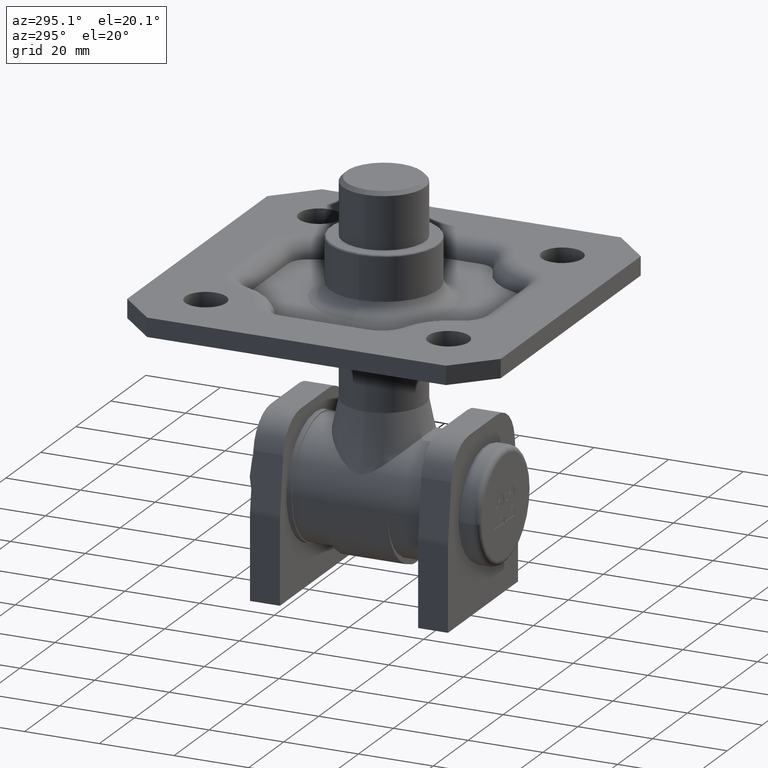
[diagram: clean part render]
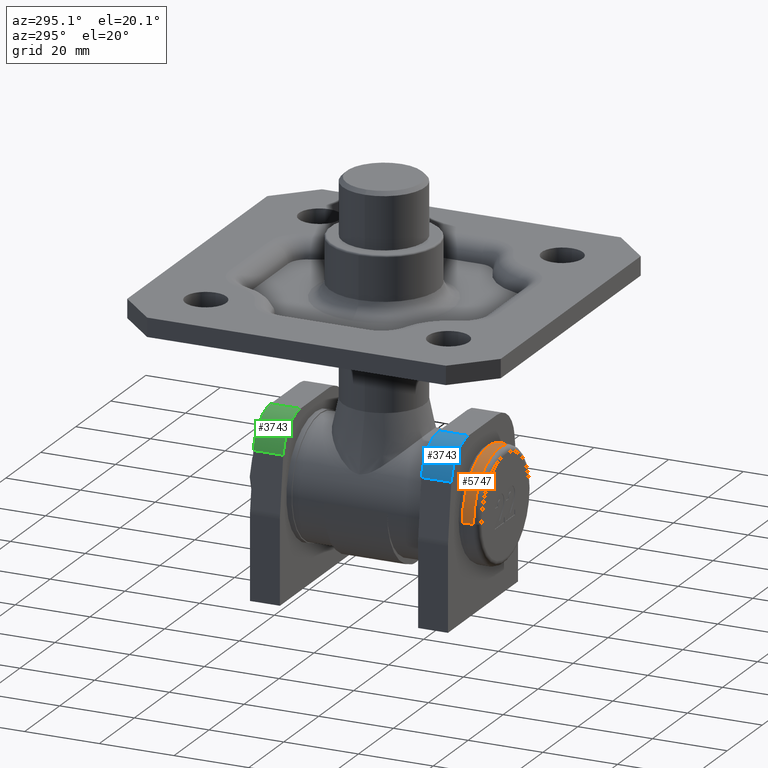
[diagram: same view with three faces highlighted in distinct colors, each labeled with its STEP entity id]
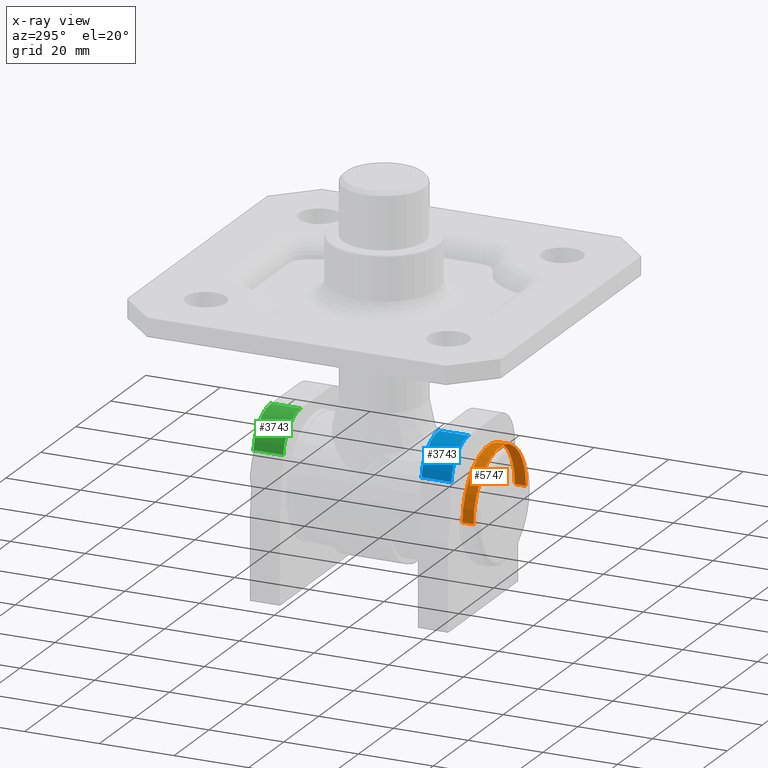
[diagram: x-ray of the same camera — body ghosted, the three highlighted faces saturated]
A machine part, auxiliary view with three faces highlighted in distinct colors.
The next image is the same camera in x-ray (body ghosted, the three faces saturated) — at least one of them is partly hidden behind the body in this view.
Their STEP definitions:

[orange] entity #5747 — the highlighted cylindrical surface (partial cylindrical patch) has radius 15 mm, axis along (-0, 1, 0).
#566 = DIRECTION ( 'NONE',  ( -1.000000000000000000, 0.0000000000000000000, 0.0000000000000000000 ) ) ;
#704 = EDGE_CURVE ( 'NONE', #7098, #12142, #3515, .T. ) ;
#750 = CARTESIAN_POINT ( 'NONE',  ( -15.00000000000000200, 54.74999999999999300, 0.0000000000000000000 ) ) ;
#1550 = CARTESIAN_POINT ( 'NONE',  ( 14.99999999999999800, 54.74999999999999300, 1.836970198721029600E-015 ) ) ;
#2880 = DIRECTION ( 'NONE',  ( -1.000000000000000000, -2.891205793294678700E-017, 0.0000000000000000000 ) ) ;
#2937 = DIRECTION ( 'NONE',  ( -3.310621835482434500E-017, 1.000000000000000000, -0.0000000000000000000 ) ) ;
#3246 = ORIENTED_EDGE ( 'NONE', *, *, #6796, .T. ) ;
#3515 = CIRCLE ( 'NONE', #5288, 15.00000000000000000 ) ;
#3756 = CARTESIAN_POINT ( 'NONE',  ( -15.00000000000000000, 1.500000000000000900, 0.0000000000000000000 ) ) ;
#3829 = CARTESIAN_POINT ( 'NONE',  ( -15.00000000000000000, 4.500000000000003600, 0.0000000000000000000 ) ) ;
#4379 = ORIENTED_EDGE ( 'NONE', *, *, #6327, .F. ) ;
#4858 = EDGE_LOOP ( 'NONE', ( #8595, #15849, #3246, #4379 ) ) ;
#5288 = AXIS2_PLACEMENT_3D ( 'NONE', #8221, #2937, #2880 ) ;
#5716 = CARTESIAN_POINT ( 'NONE',  ( 15.00000000000000000, 4.500000000000004400, 1.836970198721029600E-015 ) ) ;
#5747 = ADVANCED_FACE ( 'NONE', ( #14303 ), #17019, .T. ) ;
#5875 = CARTESIAN_POINT ( 'NONE',  ( -1.812565454926632200E-015, 54.74999999999999300, 0.0000000000000000000 ) ) ;
#6327 = EDGE_CURVE ( 'NONE', #7098, #6580, #6663, .T. ) ;
#6580 = VERTEX_POINT ( 'NONE', #3829 ) ;
#6663 = LINE ( 'NONE', #750, #10666 ) ;
#6796 = EDGE_CURVE ( 'NONE', #7174, #6580, #14092, .T. ) ;
#6822 = CARTESIAN_POINT ( 'NONE',  ( 15.00000000000000000, 1.500000000000001800, 1.836970198721029600E-015 ) ) ;
#6845 = DIRECTION ( 'NONE',  ( -3.310621835482434500E-017, 1.000000000000000000, -0.0000000000000000000 ) ) ;
#7098 = VERTEX_POINT ( 'NONE', #3756 ) ;
#7162 = EDGE_CURVE ( 'NONE', #12142, #7174, #15543, .T. ) ;
#7174 = VERTEX_POINT ( 'NONE', #5716 ) ;
#8221 = CARTESIAN_POINT ( 'NONE',  ( -4.965932753223618500E-017, 1.500000000000001300, 0.0000000000000000000 ) ) ;
#8483 = DIRECTION ( 'NONE',  ( 3.310621835482434500E-017, -1.000000000000000000, 0.0000000000000000000 ) ) ;
#8595 = ORIENTED_EDGE ( 'NONE', *, *, #704, .T. ) ;
#9854 = DIRECTION ( 'NONE',  ( 1.000000000000000000, 5.782411586589357400E-017, 0.0000000000000000000 ) ) ;
#9927 = DIRECTION ( 'NONE',  ( -3.310621835482434500E-017, 1.000000000000000000, -0.0000000000000000000 ) ) ;
#10666 = VECTOR ( 'NONE', #9927, 1000.000000000000000 ) ;
#12142 = VERTEX_POINT ( 'NONE', #6822 ) ;
#12208 = AXIS2_PLACEMENT_3D ( 'NONE', #13749, #8483, #9854 ) ;
#13011 = VECTOR ( 'NONE', #6845, 1000.000000000000000 ) ;
#13239 = AXIS2_PLACEMENT_3D ( 'NONE', #5875, #16640, #566 ) ;
#13749 = CARTESIAN_POINT ( 'NONE',  ( -1.489779825967093200E-016, 4.500000000000003600, 0.0000000000000000000 ) ) ;
#14092 = CIRCLE ( 'NONE', #12208, 15.00000000000000000 ) ;
#14303 = FACE_OUTER_BOUND ( 'NONE', #4858, .T. ) ;
#15543 = LINE ( 'NONE', #1550, #13011 ) ;
#15849 = ORIENTED_EDGE ( 'NONE', *, *, #7162, .T. ) ;
#16640 = DIRECTION ( 'NONE',  ( -3.310621835482434500E-017, 1.000000000000000000, -0.0000000000000000000 ) ) ;
#17019 = CYLINDRICAL_SURFACE ( 'NONE', #13239, 15.00000000000000000 ) ;

[blue] entity #3743 — the highlighted cylindrical surface (partial cylindrical patch) has radius 10 mm, axis along (0, -1, 0).
#173 = CYLINDRICAL_SURFACE ( 'NONE', #2840, 10.00000000000000000 ) ;
#1144 = EDGE_CURVE ( 'NONE', #14427, #8055, #6426, .T. ) ;
#1595 = DIRECTION ( 'NONE',  ( 0.0000000000000000000, 0.0000000000000000000, -1.000000000000000000 ) ) ;
#1971 = EDGE_LOOP ( 'NONE', ( #8455, #13296, #16441, #4627 ) ) ;
#2676 = EDGE_CURVE ( 'NONE', #8821, #14409, #9349, .T. ) ;
#2840 = AXIS2_PLACEMENT_3D ( 'NONE', #4130, #5705, #1595 ) ;
#2842 = VECTOR ( 'NONE', #2997, 1000.000000000000000 ) ;
#2851 = EDGE_CURVE ( 'NONE', #8055, #8821, #10399, .T. ) ;
#2997 = DIRECTION ( 'NONE',  ( -0.0000000000000000000, 1.000000000000000000, -0.0000000000000000000 ) ) ;
#3669 = CARTESIAN_POINT ( 'NONE',  ( -18.09495658176349100, -4.000000000000000000, 14.74034734589208800 ) ) ;
#3683 = CARTESIAN_POINT ( 'NONE',  ( -18.09495658176349100, 4.000000000000000000, 14.74034734589208800 ) ) ;
#3743 = ADVANCED_FACE ( 'NONE', ( #15139 ), #173, .T. ) ;
#4130 = CARTESIAN_POINT ( 'NONE',  ( -8.172177814626813600, 4.000000000000000000, 13.50000000000000400 ) ) ;
#4293 = CARTESIAN_POINT ( 'NONE',  ( -8.172177814626813600, 4.000000000000000000, 13.50000000000000400 ) ) ;
#4457 = CIRCLE ( 'NONE', #4907, 10.00000000000000000 ) ;
#4627 = ORIENTED_EDGE ( 'NONE', *, *, #2676, .F. ) ;
#4907 = AXIS2_PLACEMENT_3D ( 'NONE', #14096, #11216, #13959 ) ;
#5705 = DIRECTION ( 'NONE',  ( 0.0000000000000000000, -1.000000000000000000, 0.0000000000000000000 ) ) ;
#6426 = LINE ( 'NONE', #7230, #2842 ) ;
#7230 = CARTESIAN_POINT ( 'NONE',  ( -18.09495658176349100, 4.000000000000000000, 14.74034734589208800 ) ) ;
#8055 = VERTEX_POINT ( 'NONE', #3683 ) ;
#8455 = ORIENTED_EDGE ( 'NONE', *, *, #2851, .F. ) ;
#8812 = DIRECTION ( 'NONE',  ( -0.0000000000000000000, 1.000000000000000000, -0.0000000000000000000 ) ) ;
#8821 = VERTEX_POINT ( 'NONE', #14650 ) ;
#9349 = LINE ( 'NONE', #13686, #12293 ) ;
#10399 = CIRCLE ( 'NONE', #15999, 10.00000000000000000 ) ;
#11216 = DIRECTION ( 'NONE',  ( 0.0000000000000000000, -1.000000000000000000, 0.0000000000000000000 ) ) ;
#12293 = VECTOR ( 'NONE', #15261, 1000.000000000000000 ) ;
#13296 = ORIENTED_EDGE ( 'NONE', *, *, #1144, .F. ) ;
#13686 = CARTESIAN_POINT ( 'NONE',  ( -8.172177814626813600, 4.000000000000000000, 23.50000000000000000 ) ) ;
#13959 = DIRECTION ( 'NONE',  ( 0.0000000000000000000, 0.0000000000000000000, -1.000000000000000000 ) ) ;
#14096 = CARTESIAN_POINT ( 'NONE',  ( -8.172177814626813600, -4.000000000000000000, 13.50000000000000400 ) ) ;
#14409 = VERTEX_POINT ( 'NONE', #14502 ) ;
#14427 = VERTEX_POINT ( 'NONE', #3669 ) ;
#14502 = CARTESIAN_POINT ( 'NONE',  ( -8.172177814626813600, -4.000000000000000000, 23.50000000000000000 ) ) ;
#14650 = CARTESIAN_POINT ( 'NONE',  ( -8.172177814626813600, 4.000000000000000000, 23.50000000000000000 ) ) ;
#15139 = FACE_OUTER_BOUND ( 'NONE', #1971, .T. ) ;
#15261 = DIRECTION ( 'NONE',  ( 0.0000000000000000000, -1.000000000000000000, 0.0000000000000000000 ) ) ;
#15999 = AXIS2_PLACEMENT_3D ( 'NONE', #4293, #8812, #16875 ) ;
#16441 = ORIENTED_EDGE ( 'NONE', *, *, #16455, .F. ) ;
#16455 = EDGE_CURVE ( 'NONE', #14409, #14427, #4457, .T. ) ;
#16875 = DIRECTION ( 'NONE',  ( 0.0000000000000000000, 0.0000000000000000000, -1.000000000000000000 ) ) ;

[green] entity #3743 — the highlighted cylindrical surface (partial cylindrical patch) has radius 10 mm, axis along (0, -1, 0).
#173 = CYLINDRICAL_SURFACE ( 'NONE', #2840, 10.00000000000000000 ) ;
#1144 = EDGE_CURVE ( 'NONE', #14427, #8055, #6426, .T. ) ;
#1595 = DIRECTION ( 'NONE',  ( 0.0000000000000000000, 0.0000000000000000000, -1.000000000000000000 ) ) ;
#1971 = EDGE_LOOP ( 'NONE', ( #8455, #13296, #16441, #4627 ) ) ;
#2676 = EDGE_CURVE ( 'NONE', #8821, #14409, #9349, .T. ) ;
#2840 = AXIS2_PLACEMENT_3D ( 'NONE', #4130, #5705, #1595 ) ;
#2842 = VECTOR ( 'NONE', #2997, 1000.000000000000000 ) ;
#2851 = EDGE_CURVE ( 'NONE', #8055, #8821, #10399, .T. ) ;
#2997 = DIRECTION ( 'NONE',  ( -0.0000000000000000000, 1.000000000000000000, -0.0000000000000000000 ) ) ;
#3669 = CARTESIAN_POINT ( 'NONE',  ( -18.09495658176349100, -4.000000000000000000, 14.74034734589208800 ) ) ;
#3683 = CARTESIAN_POINT ( 'NONE',  ( -18.09495658176349100, 4.000000000000000000, 14.74034734589208800 ) ) ;
#3743 = ADVANCED_FACE ( 'NONE', ( #15139 ), #173, .T. ) ;
#4130 = CARTESIAN_POINT ( 'NONE',  ( -8.172177814626813600, 4.000000000000000000, 13.50000000000000400 ) ) ;
#4293 = CARTESIAN_POINT ( 'NONE',  ( -8.172177814626813600, 4.000000000000000000, 13.50000000000000400 ) ) ;
#4457 = CIRCLE ( 'NONE', #4907, 10.00000000000000000 ) ;
#4627 = ORIENTED_EDGE ( 'NONE', *, *, #2676, .F. ) ;
#4907 = AXIS2_PLACEMENT_3D ( 'NONE', #14096, #11216, #13959 ) ;
#5705 = DIRECTION ( 'NONE',  ( 0.0000000000000000000, -1.000000000000000000, 0.0000000000000000000 ) ) ;
#6426 = LINE ( 'NONE', #7230, #2842 ) ;
#7230 = CARTESIAN_POINT ( 'NONE',  ( -18.09495658176349100, 4.000000000000000000, 14.74034734589208800 ) ) ;
#8055 = VERTEX_POINT ( 'NONE', #3683 ) ;
#8455 = ORIENTED_EDGE ( 'NONE', *, *, #2851, .F. ) ;
#8812 = DIRECTION ( 'NONE',  ( -0.0000000000000000000, 1.000000000000000000, -0.0000000000000000000 ) ) ;
#8821 = VERTEX_POINT ( 'NONE', #14650 ) ;
#9349 = LINE ( 'NONE', #13686, #12293 ) ;
#10399 = CIRCLE ( 'NONE', #15999, 10.00000000000000000 ) ;
#11216 = DIRECTION ( 'NONE',  ( 0.0000000000000000000, -1.000000000000000000, 0.0000000000000000000 ) ) ;
#12293 = VECTOR ( 'NONE', #15261, 1000.000000000000000 ) ;
#13296 = ORIENTED_EDGE ( 'NONE', *, *, #1144, .F. ) ;
#13686 = CARTESIAN_POINT ( 'NONE',  ( -8.172177814626813600, 4.000000000000000000, 23.50000000000000000 ) ) ;
#13959 = DIRECTION ( 'NONE',  ( 0.0000000000000000000, 0.0000000000000000000, -1.000000000000000000 ) ) ;
#14096 = CARTESIAN_POINT ( 'NONE',  ( -8.172177814626813600, -4.000000000000000000, 13.50000000000000400 ) ) ;
#14409 = VERTEX_POINT ( 'NONE', #14502 ) ;
#14427 = VERTEX_POINT ( 'NONE', #3669 ) ;
#14502 = CARTESIAN_POINT ( 'NONE',  ( -8.172177814626813600, -4.000000000000000000, 23.50000000000000000 ) ) ;
#14650 = CARTESIAN_POINT ( 'NONE',  ( -8.172177814626813600, 4.000000000000000000, 23.50000000000000000 ) ) ;
#15139 = FACE_OUTER_BOUND ( 'NONE', #1971, .T. ) ;
#15261 = DIRECTION ( 'NONE',  ( 0.0000000000000000000, -1.000000000000000000, 0.0000000000000000000 ) ) ;
#15999 = AXIS2_PLACEMENT_3D ( 'NONE', #4293, #8812, #16875 ) ;
#16441 = ORIENTED_EDGE ( 'NONE', *, *, #16455, .F. ) ;
#16455 = EDGE_CURVE ( 'NONE', #14409, #14427, #4457, .T. ) ;
#16875 = DIRECTION ( 'NONE',  ( 0.0000000000000000000, 0.0000000000000000000, -1.000000000000000000 ) ) ;